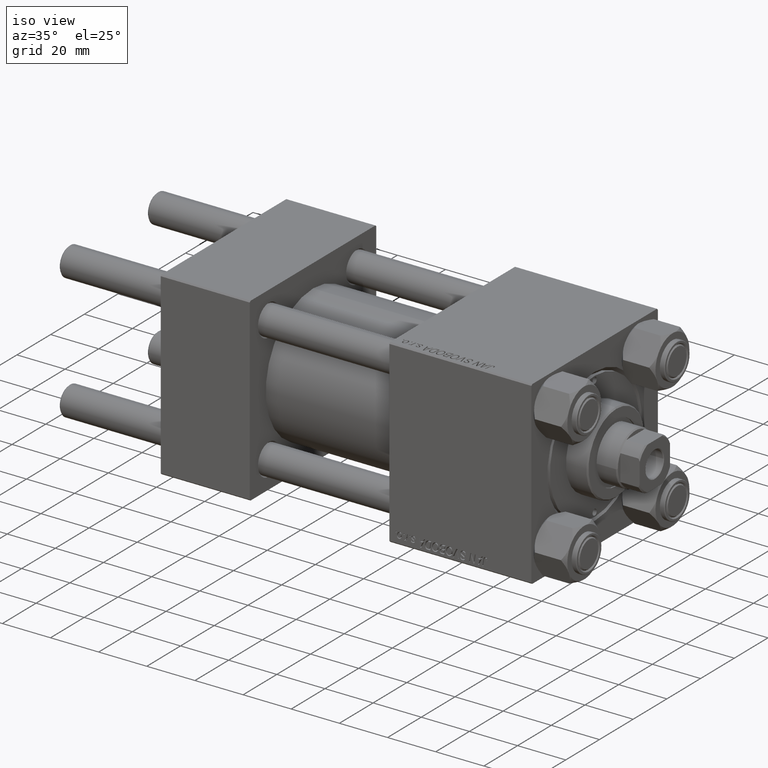
[diagram: clean part render]
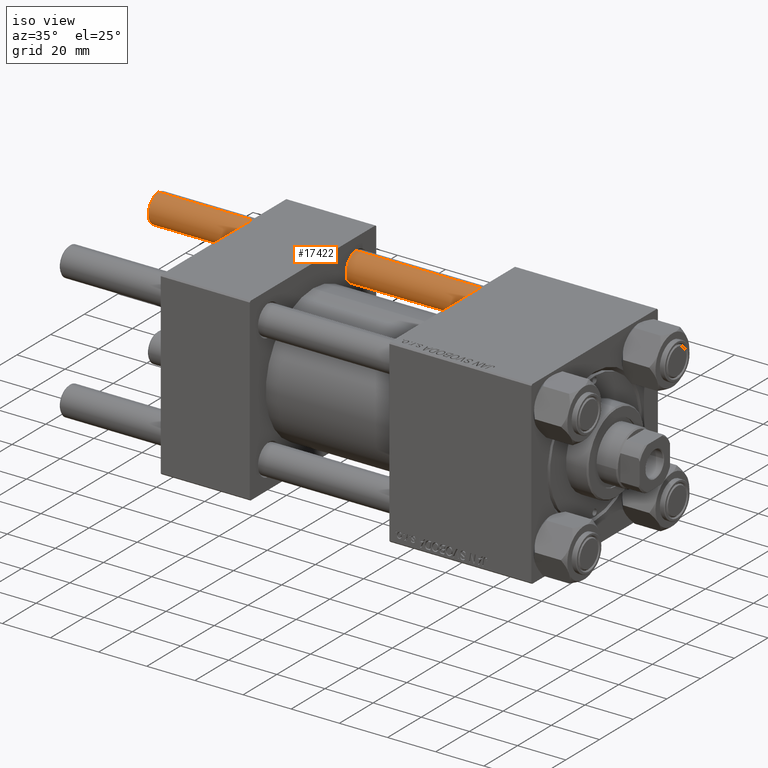
[diagram: same view with one face highlighted and labeled with its STEP entity id]
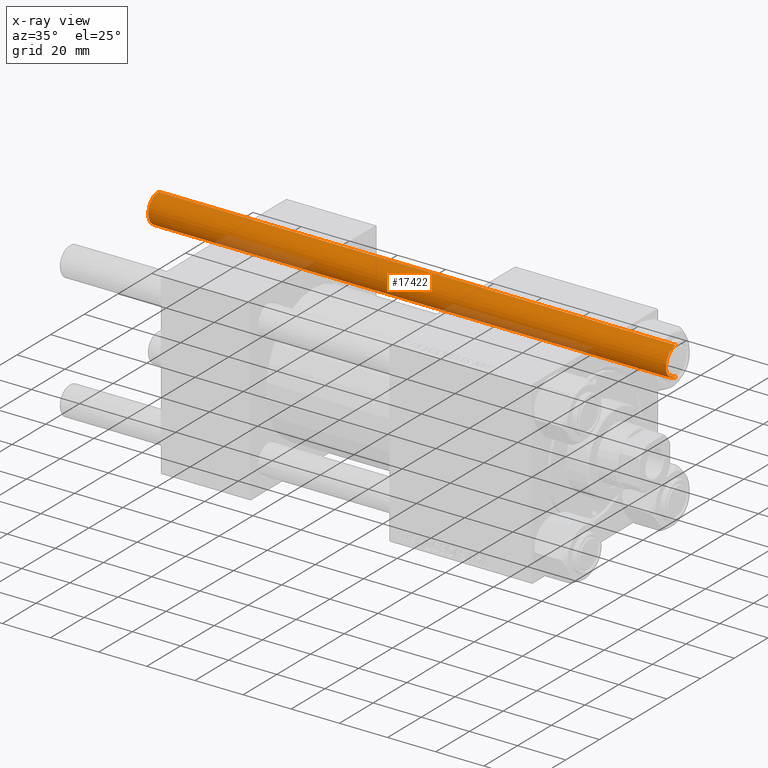
[diagram: x-ray of the same camera — body ghosted, the highlighted face saturated]
A machine part, iso view. The second image highlights one B-rep face of the part: STEP entity #17422.
The next image is the same camera in x-ray: the body ghosted, the highlighted face saturated — about 13% of this face is hidden behind the body in this view.
In plain terms, the highlighted cylindrical surface (edge-blend (fillet) strip) has radius 6 mm, axis along (-1, -0, -0).
Its self-contained STEP definition (entity closure, byte-faithful):
#1147 = FACE_OUTER_BOUND ( 'NONE', #48015, .T. ) ;
#1174 = DIRECTION ( 'NONE',  ( 1.000000000000000000, 0.000000000000000000, 0.000000000000000000 ) ) ;
#6934 = DIRECTION ( 'NONE',  ( -0.000000000000000000, -0.000000000000000000, -1.000000000000000000 ) ) ;
#7368 = ORIENTED_EDGE ( 'NONE', *, *, #38486, .T. ) ;
#8644 = CARTESIAN_POINT ( 'NONE',  ( 6.000000000000000888, 7.347880794884120722E-16, 0.5000000000000004441 ) ) ;
#8732 = CYLINDRICAL_SURFACE ( 'NONE', #46387, 6.000000000000000888 ) ;
#13322 = EDGE_CURVE ( 'NONE', #15348, #28576, #15214, .T. ) ;
#13671 = CIRCLE ( 'NONE', #25811, 6.000000000000000888 ) ;
#14021 = DIRECTION ( 'NONE',  ( 0.000000000000000000, 0.000000000000000000, -1.000000000000000000 ) ) ;
#15214 = LINE ( 'NONE', #41513, #20510 ) ;
#15348 = VERTEX_POINT ( 'NONE', #30671 ) ;
#16856 = DIRECTION ( 'NONE',  ( -1.000000000000000000, 0.000000000000000000, 0.000000000000000000 ) ) ;
#17351 = CARTESIAN_POINT ( 'NONE',  ( 0.000000000000000000, 0.000000000000000000, 216.0000000000000000 ) ) ;
#17422 = ADVANCED_FACE ( 'NONE', ( #1147 ), #8732, .T. ) ;
#19151 = AXIS2_PLACEMENT_3D ( 'NONE', #48674, #14021, #29438 ) ;
#20082 = ORIENTED_EDGE ( 'NONE', *, *, #13322, .F. ) ;
#20510 = VECTOR ( 'NONE', #22314, 1000.000000000000000 ) ;
#20638 = VERTEX_POINT ( 'NONE', #47382 ) ;
#22138 = CARTESIAN_POINT ( 'NONE',  ( -6.000000000000000888, 0.000000000000000000, 216.0000000000000000 ) ) ;
#22314 = DIRECTION ( 'NONE',  ( -0.000000000000000000, -0.000000000000000000, -1.000000000000000000 ) ) ;
#25811 = AXIS2_PLACEMENT_3D ( 'NONE', #36581, #44426, #1174 ) ;
#28576 = VERTEX_POINT ( 'NONE', #8644 ) ;
#29438 = DIRECTION ( 'NONE',  ( 1.000000000000000000, 0.000000000000000000, 0.000000000000000000 ) ) ;
#30570 = VECTOR ( 'NONE', #6934, 1000.000000000000000 ) ;
#30671 = CARTESIAN_POINT ( 'NONE',  ( 6.000000000000000888, 7.347880794884120722E-16, 215.5000000000000284 ) ) ;
#32615 = CARTESIAN_POINT ( 'NONE',  ( -6.000000000000000888, 0.000000000000000000, 0.5000000000000004441 ) ) ;
#34461 = CIRCLE ( 'NONE', #19151, 6.000000000000000888 ) ;
#35437 = EDGE_CURVE ( 'NONE', #15348, #20638, #34461, .T. ) ;
#36581 = CARTESIAN_POINT ( 'NONE',  ( 0.000000000000000000, 0.000000000000000000, 0.5000000000000004441 ) ) ;
#36667 = VERTEX_POINT ( 'NONE', #32615 ) ;
#37296 = LINE ( 'NONE', #22138, #30570 ) ;
#38486 = EDGE_CURVE ( 'NONE', #20638, #36667, #37296, .T. ) ;
#40682 = EDGE_CURVE ( 'NONE', #36667, #28576, #13671, .T. ) ;
#41513 = CARTESIAN_POINT ( 'NONE',  ( 6.000000000000000888, 7.347880794884120722E-16, 216.0000000000000000 ) ) ;
#44426 = DIRECTION ( 'NONE',  ( -0.000000000000000000, -0.000000000000000000, 1.000000000000000000 ) ) ;
#46387 = AXIS2_PLACEMENT_3D ( 'NONE', #17351, #46956, #16856 ) ;
#46399 = ORIENTED_EDGE ( 'NONE', *, *, #35437, .T. ) ;
#46956 = DIRECTION ( 'NONE',  ( -0.000000000000000000, -0.000000000000000000, -1.000000000000000000 ) ) ;
#47382 = CARTESIAN_POINT ( 'NONE',  ( -6.000000000000000888, 0.000000000000000000, 215.5000000000000284 ) ) ;
#47895 = ORIENTED_EDGE ( 'NONE', *, *, #40682, .T. ) ;
#48015 = EDGE_LOOP ( 'NONE', ( #20082, #46399, #7368, #47895 ) ) ;
#48674 = CARTESIAN_POINT ( 'NONE',  ( 0.000000000000000000, 0.000000000000000000, 215.5000000000000284 ) ) ;